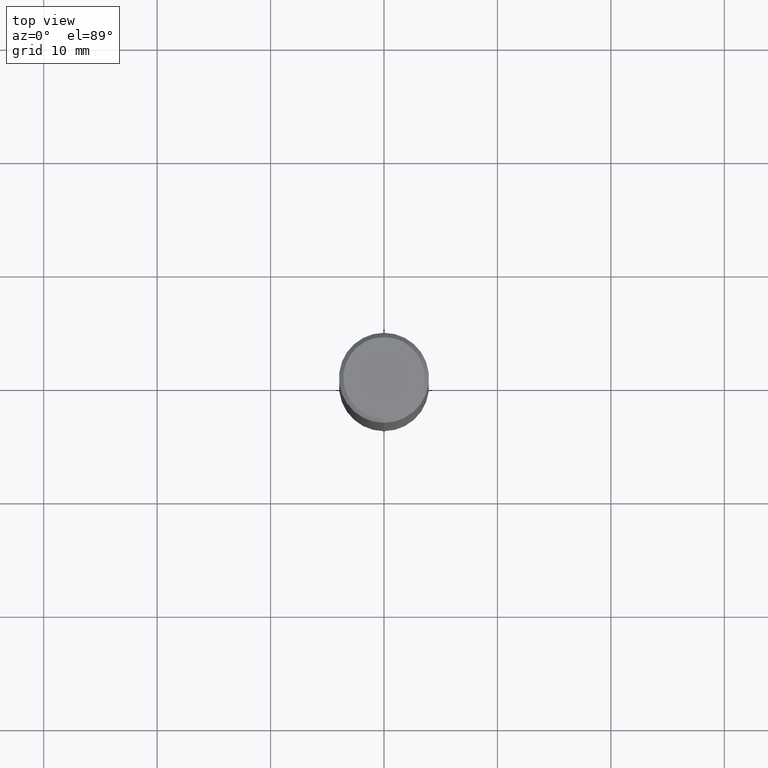
[diagram: clean part render]
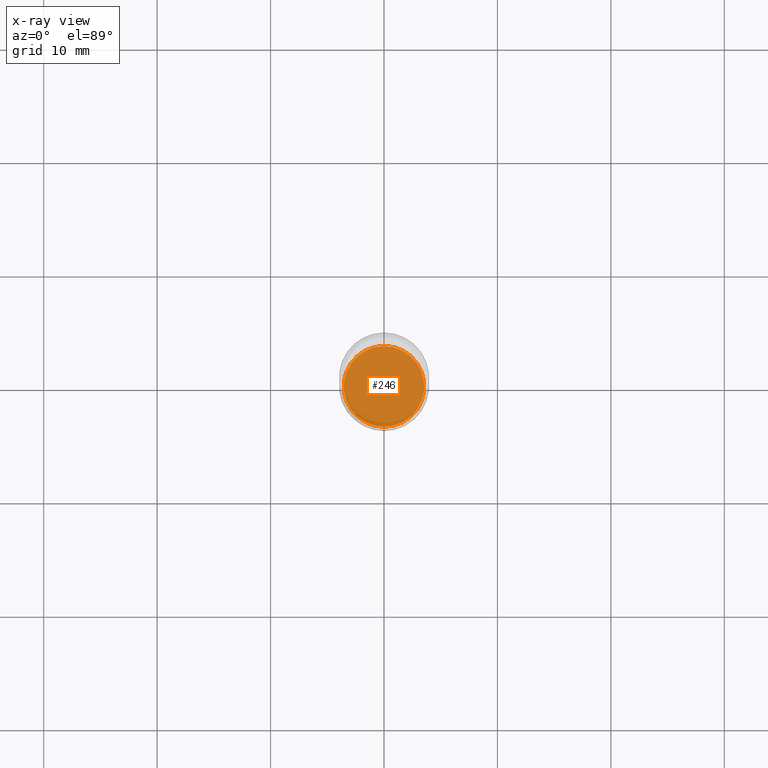
[diagram: x-ray — body ghosted, one internal face saturated and labeled with its STEP entity id]
A machine part, top view, then the same camera in x-ray: the body is ghosted and one INTERNAL B-rep face — a face not visible from any outside direction — is saturated and labeled: STEP entity #246.
In plain terms, the highlighted planar face has unit normal (-0, 0, 1).
Its self-contained STEP definition (entity closure, byte-faithful):
#21 = FACE_OUTER_BOUND ( 'NONE', #257, .T. ) ;
#38 = ORIENTED_EDGE ( 'NONE', *, *, #385, .F. ) ;
#58 = VERTEX_POINT ( 'NONE', #451 ) ;
#96 = DIRECTION ( 'NONE',  ( -6.982962677686265922E-15, -1.000000000000000000, 3.491349360429000645E-15 ) ) ;
#99 = DIRECTION ( 'NONE',  ( -6.982962677686265922E-15, -1.000000000000000000, 3.899854380677035588E-15 ) ) ;
#109 = DIRECTION ( 'NONE',  ( -2.445560966219159716E-29, 3.491349360429001039E-15, 1.000000000000000000 ) ) ;
#116 = CIRCLE ( 'NONE', #384, 0.1401000000000000023 ) ;
#127 = EDGE_CURVE ( 'NONE', #197, #58, #116, .T. ) ;
#131 = PLANE ( 'NONE',  #485 ) ;
#135 = DIRECTION ( 'NONE',  ( -2.445560966219159716E-29, 3.491349360429001039E-15, 1.000000000000000000 ) ) ;
#179 = CARTESIAN_POINT ( 'NONE',  ( 4.279731690883529924E-29, -6.109861380750751819E-15, -1.750000000000000222 ) ) ;
#197 = VERTEX_POINT ( 'NONE', #201 ) ;
#201 = CARTESIAN_POINT ( 'NONE',  ( -9.783130711438031058E-16, -0.1401000000000061085, -1.749999999999999556 ) ) ;
#221 = CIRCLE ( 'NONE', #369, 0.1401000000000000023 ) ;
#243 = CARTESIAN_POINT ( 'NONE',  ( 4.279731690883529924E-29, -6.109861380750751819E-15, -1.750000000000000222 ) ) ;
#246 = ADVANCED_FACE ( 'NONE', ( #21 ), #131, .F. ) ;
#257 = EDGE_LOOP ( 'NONE', ( #375, #38 ) ) ;
#283 = DIRECTION ( 'NONE',  ( -6.982962677686265922E-15, -1.000000000000000000, 3.899854380677035588E-15 ) ) ;
#295 = CARTESIAN_POINT ( 'NONE',  ( 4.279731690883529924E-29, -6.109861380750751819E-15, -1.750000000000000222 ) ) ;
#369 = AXIS2_PLACEMENT_3D ( 'NONE', #179, #135, #99 ) ;
#375 = ORIENTED_EDGE ( 'NONE', *, *, #127, .F. ) ;
#384 = AXIS2_PLACEMENT_3D ( 'NONE', #243, #109, #283 ) ;
#385 = EDGE_CURVE ( 'NONE', #58, #197, #221, .T. ) ;
#451 = CARTESIAN_POINT ( 'NONE',  ( 9.972467296393428329E-16, 0.1400999999999938961, -1.750000000000000666 ) ) ;
#455 = DIRECTION ( 'NONE',  ( -2.445560966219159716E-29, 3.491349360429000645E-15, 1.000000000000000000 ) ) ;
#485 = AXIS2_PLACEMENT_3D ( 'NONE', #295, #455, #96 ) ;